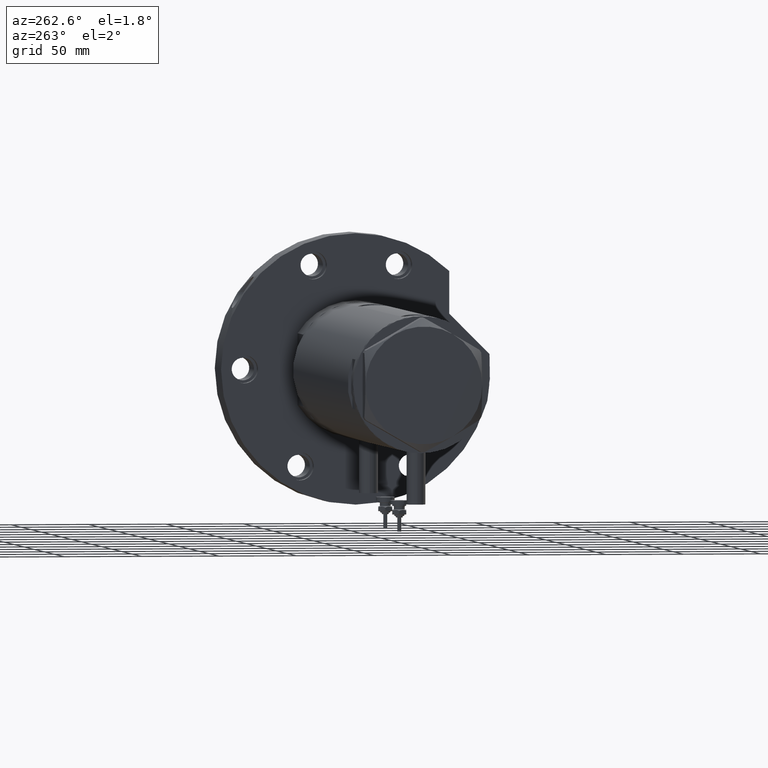
[diagram: clean part render]
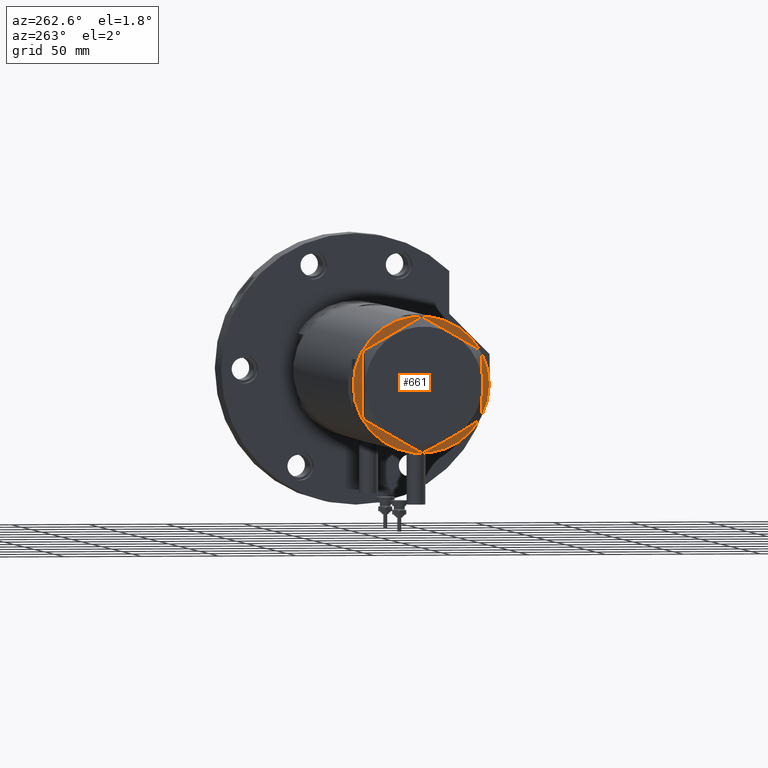
[diagram: same view with one face highlighted and labeled with its STEP entity id]
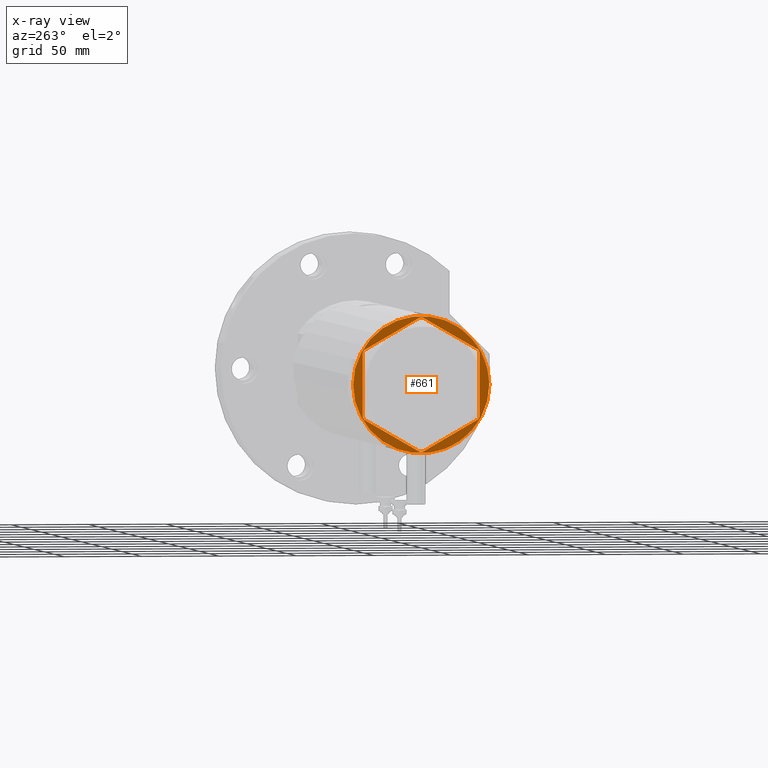
[diagram: x-ray of the same camera — body ghosted, the highlighted face saturated]
A machine part, auxiliary view. The second image highlights one B-rep face of the part: STEP entity #661.
The next image is the same camera in x-ray: the body ghosted, the highlighted face saturated — about 0% of this face is hidden behind the body in this view.
In plain terms, the highlighted planar face has unit normal (1, 0, -0).
Its self-contained STEP definition (entity closure, byte-faithful):
#37 = VECTOR ( 'NONE', #1729, 1000.000000000000000 ) ;
#80 = VERTEX_POINT ( 'NONE', #6365 ) ;
#199 = ORIENTED_EDGE ( 'NONE', *, *, #2464, .T. ) ;
#339 = EDGE_CURVE ( 'NONE', #1367, #3615, #6652, .T. ) ;
#500 = VERTEX_POINT ( 'NONE', #4520 ) ;
#569 = ORIENTED_EDGE ( 'NONE', *, *, #770, .F. ) ;
#596 = EDGE_CURVE ( 'NONE', #6195, #3779, #4616, .T. ) ;
#647 = CARTESIAN_POINT ( 'NONE',  ( 36.78005154776143115, -22.35497266190837706, 0.000000000000000000 ) ) ;
#661 = ADVANCED_FACE ( 'NONE', ( #2149, #3785 ), #2683, .F. ) ;
#734 = DIRECTION ( 'NONE',  ( -0.8660254037844385966, 0.5000000000000000000, 0.000000000000000000 ) ) ;
#749 = CARTESIAN_POINT ( 'NONE',  ( -37.26502577388077242, 21.51497266190828483, 0.000000000000000000 ) ) ;
#770 = EDGE_CURVE ( 'NONE', #2650, #1705, #4042, .T. ) ;
#791 = ORIENTED_EDGE ( 'NONE', *, *, #2218, .T. ) ;
#948 = EDGE_CURVE ( 'NONE', #5919, #3615, #4443, .T. ) ;
#953 = LINE ( 'NONE', #4334, #6620 ) ;
#974 = CARTESIAN_POINT ( 'NONE',  ( -37.74999999999999289, -20.67497266190837379, 0.000000000000000000 ) ) ;
#986 = EDGE_CURVE ( 'NONE', #2300, #6228, #953, .T. ) ;
#1126 = EDGE_CURVE ( 'NONE', #1705, #2650, #4285, .T. ) ;
#1135 = VECTOR ( 'NONE', #734, 1000.000000000000227 ) ;
#1207 = EDGE_LOOP ( 'NONE', ( #4666, #3784, #4222, #7524, #3191, #3913, #2035, #1433, #4525, #199, #1549, #791 ) ) ;
#1308 = CARTESIAN_POINT ( 'NONE',  ( 37.26502577388077242, -21.51497266190830260, 0.000000000000000000 ) ) ;
#1367 = VERTEX_POINT ( 'NONE', #7080 ) ;
#1373 = DIRECTION ( 'NONE',  ( -1.000000000000000000, 0.000000000000000000, 0.000000000000000000 ) ) ;
#1404 = LINE ( 'NONE', #3549, #3853 ) ;
#1433 = ORIENTED_EDGE ( 'NONE', *, *, #7415, .T. ) ;
#1549 = ORIENTED_EDGE ( 'NONE', *, *, #3631, .F. ) ;
#1676 = ORIENTED_EDGE ( 'NONE', *, *, #1126, .F. ) ;
#1705 = VERTEX_POINT ( 'NONE', #2096 ) ;
#1723 = AXIS2_PLACEMENT_3D ( 'NONE', #5909, #2876, #4707 ) ;
#1729 = DIRECTION ( 'NONE',  ( 3.183713056926429451E-16, -1.000000000000000000, 0.000000000000000000 ) ) ;
#1835 = LINE ( 'NONE', #2476, #1135 ) ;
#1884 = LINE ( 'NONE', #1308, #3083 ) ;
#1917 = DIRECTION ( 'NONE',  ( -0.4999999999999981681, -0.8660254037844395958, -0.000000000000000000 ) ) ;
#2035 = ORIENTED_EDGE ( 'NONE', *, *, #339, .F. ) ;
#2041 = VECTOR ( 'NONE', #2597, 999.9999999999998863 ) ;
#2096 = CARTESIAN_POINT ( 'NONE',  ( 44.00000000000000000, 0.000000000000000000, 0.000000000000000000 ) ) ;
#2149 = FACE_BOUND ( 'NONE', #1207, .T. ) ;
#2162 = DIRECTION ( 'NONE',  ( 0.8660254037844388186, 0.4999999999999997224, 0.000000000000000000 ) ) ;
#2218 = EDGE_CURVE ( 'NONE', #500, #5517, #6840, .T. ) ;
#2233 = CARTESIAN_POINT ( 'NONE',  ( -4.107234936485837051E-15, -43.58994532381674247, 0.000000000000000000 ) ) ;
#2300 = VERTEX_POINT ( 'NONE', #5843 ) ;
#2322 = CARTESIAN_POINT ( 'NONE',  ( 0.9699484522385760643, -43.02994532381674020, 0.000000000000000000 ) ) ;
#2332 = VECTOR ( 'NONE', #3337, 1000.000000000000000 ) ;
#2417 = LINE ( 'NONE', #749, #4638 ) ;
#2464 = EDGE_CURVE ( 'NONE', #6195, #80, #2417, .T. ) ;
#2476 = CARTESIAN_POINT ( 'NONE',  ( 37.75000000000000000, 21.79497266190837124, 0.000000000000000000 ) ) ;
#2479 = CARTESIAN_POINT ( 'NONE',  ( 0.000000000000000000, 0.000000000000000000, 0.000000000000000000 ) ) ;
#2597 = DIRECTION ( 'NONE',  ( -0.5000000000000002220, 0.8660254037844385966, -0.000000000000000000 ) ) ;
#2625 = DIRECTION ( 'NONE',  ( -1.000000000000000000, -0.000000000000000000, -0.000000000000000000 ) ) ;
#2650 = VERTEX_POINT ( 'NONE', #6791 ) ;
#2666 = CARTESIAN_POINT ( 'NONE',  ( 0.000000000000000000, -43.02994532381674020, 0.000000000000000000 ) ) ;
#2683 = PLANE ( 'NONE',  #6741 ) ;
#2732 = LINE ( 'NONE', #2233, #5572 ) ;
#2777 = CARTESIAN_POINT ( 'NONE',  ( -37.75000000000000711, 20.67497266190837024, 0.000000000000000000 ) ) ;
#2876 = DIRECTION ( 'NONE',  ( 0.000000000000000000, 0.000000000000000000, -1.000000000000000000 ) ) ;
#2947 = VERTEX_POINT ( 'NONE', #3632 ) ;
#3057 = DIRECTION ( 'NONE',  ( 0.4999999999999978351, 0.8660254037844398178, -0.000000000000000000 ) ) ;
#3083 = VECTOR ( 'NONE', #1917, 1000.000000000000227 ) ;
#3114 = DIRECTION ( 'NONE',  ( -4.775569585389645902E-16, 1.000000000000000000, 0.000000000000000000 ) ) ;
#3191 = ORIENTED_EDGE ( 'NONE', *, *, #6610, .F. ) ;
#3268 = DIRECTION ( 'NONE',  ( 0.4999999999999993894, -0.8660254037844390407, -0.000000000000000000 ) ) ;
#3270 = EDGE_CURVE ( 'NONE', #2300, #5517, #1835, .T. ) ;
#3319 = EDGE_LOOP ( 'NONE', ( #1676, #569 ) ) ;
#3337 = DIRECTION ( 'NONE',  ( 1.000000000000000000, -0.000000000000000000, -0.000000000000000000 ) ) ;
#3397 = DIRECTION ( 'NONE',  ( 0.000000000000000000, 0.000000000000000000, -1.000000000000000000 ) ) ;
#3549 = CARTESIAN_POINT ( 'NONE',  ( 37.75000000000002132, -21.79497266190837124, 0.000000000000000000 ) ) ;
#3576 = VECTOR ( 'NONE', #7265, 1000.000000000000000 ) ;
#3615 = VERTEX_POINT ( 'NONE', #4320 ) ;
#3631 = EDGE_CURVE ( 'NONE', #500, #80, #7150, .T. ) ;
#3632 = CARTESIAN_POINT ( 'NONE',  ( 37.75000000000002132, -20.67497266190835958, 0.000000000000000000 ) ) ;
#3675 = CARTESIAN_POINT ( 'NONE',  ( 0.000000000000000000, 43.58994532381674247, 0.000000000000000000 ) ) ;
#3734 = CARTESIAN_POINT ( 'NONE',  ( -37.74999999999999289, -21.79497266190838189, 0.000000000000000000 ) ) ;
#3779 = VERTEX_POINT ( 'NONE', #974 ) ;
#3784 = ORIENTED_EDGE ( 'NONE', *, *, #986, .T. ) ;
#3785 = FACE_OUTER_BOUND ( 'NONE', #3319, .T. ) ;
#3853 = VECTOR ( 'NONE', #3114, 1000.000000000000000 ) ;
#3913 = ORIENTED_EDGE ( 'NONE', *, *, #948, .T. ) ;
#4042 = CIRCLE ( 'NONE', #1723, 44.00000000000000000 ) ;
#4150 = EDGE_CURVE ( 'NONE', #2947, #4898, #1884, .T. ) ;
#4222 = ORIENTED_EDGE ( 'NONE', *, *, #6060, .F. ) ;
#4285 = CIRCLE ( 'NONE', #6265, 44.00000000000000000 ) ;
#4320 = CARTESIAN_POINT ( 'NONE',  ( -0.9699484522385920515, -43.02994532381674020, 0.000000000000000000 ) ) ;
#4334 = CARTESIAN_POINT ( 'NONE',  ( 37.26502577388072979, 21.51497266190834523, 0.000000000000000000 ) ) ;
#4443 = LINE ( 'NONE', #2666, #4640 ) ;
#4490 = LINE ( 'NONE', #7327, #2041 ) ;
#4520 = CARTESIAN_POINT ( 'NONE',  ( -0.9699484522385801721, 43.02994532381674020, 0.000000000000000000 ) ) ;
#4525 = ORIENTED_EDGE ( 'NONE', *, *, #596, .F. ) ;
#4616 = LINE ( 'NONE', #6976, #37 ) ;
#4638 = VECTOR ( 'NONE', #3057, 1000.000000000000114 ) ;
#4640 = VECTOR ( 'NONE', #2625, 1000.000000000000000 ) ;
#4666 = ORIENTED_EDGE ( 'NONE', *, *, #3270, .F. ) ;
#4707 = DIRECTION ( 'NONE',  ( -1.000000000000000000, 0.000000000000000000, 0.000000000000000000 ) ) ;
#4794 = DIRECTION ( 'NONE',  ( 0.000000000000000000, 0.000000000000000000, -1.000000000000000000 ) ) ;
#4898 = VERTEX_POINT ( 'NONE', #647 ) ;
#5517 = VERTEX_POINT ( 'NONE', #6448 ) ;
#5572 = VECTOR ( 'NONE', #2162, 1000.000000000000114 ) ;
#5739 = DIRECTION ( 'NONE',  ( -1.000000000000000000, 0.000000000000000000, -0.000000000000000000 ) ) ;
#5843 = CARTESIAN_POINT ( 'NONE',  ( 36.78005154776142405, 22.35497266190837706, 0.000000000000000000 ) ) ;
#5909 = CARTESIAN_POINT ( 'NONE',  ( 0.000000000000000000, 0.000000000000000000, 0.000000000000000000 ) ) ;
#5919 = VERTEX_POINT ( 'NONE', #2322 ) ;
#6060 = EDGE_CURVE ( 'NONE', #2947, #6228, #1404, .T. ) ;
#6078 = DIRECTION ( 'NONE',  ( 0.8660254037844385966, -0.4999999999999998890, 0.000000000000000000 ) ) ;
#6122 = VECTOR ( 'NONE', #6078, 1000.000000000000227 ) ;
#6188 = CARTESIAN_POINT ( 'NONE',  ( 0.000000000000000000, 43.02994532381674020, 0.000000000000000000 ) ) ;
#6195 = VERTEX_POINT ( 'NONE', #2777 ) ;
#6209 = CARTESIAN_POINT ( 'NONE',  ( 0.000000000000000000, 0.000000000000000000, 0.000000000000000000 ) ) ;
#6228 = VERTEX_POINT ( 'NONE', #6843 ) ;
#6265 = AXIS2_PLACEMENT_3D ( 'NONE', #2479, #4794, #1373 ) ;
#6365 = CARTESIAN_POINT ( 'NONE',  ( -36.78005154776143826, 22.35497266190836996, 0.000000000000000000 ) ) ;
#6448 = CARTESIAN_POINT ( 'NONE',  ( 0.9699484522385850571, 43.02994532381674020, 0.000000000000000000 ) ) ;
#6610 = EDGE_CURVE ( 'NONE', #5919, #4898, #2732, .T. ) ;
#6620 = VECTOR ( 'NONE', #3268, 999.9999999999998863 ) ;
#6652 = LINE ( 'NONE', #3734, #6122 ) ;
#6741 = AXIS2_PLACEMENT_3D ( 'NONE', #6209, #3397, #5739 ) ;
#6791 = CARTESIAN_POINT ( 'NONE',  ( -44.00000000000000000, 5.388445916248353619E-15, 0.000000000000000000 ) ) ;
#6840 = LINE ( 'NONE', #6188, #2332 ) ;
#6843 = CARTESIAN_POINT ( 'NONE',  ( 37.75000000000000000, 20.67497266190835958, 0.000000000000000000 ) ) ;
#6976 = CARTESIAN_POINT ( 'NONE',  ( -37.75000000000000711, 21.79497266190837124, 0.000000000000000000 ) ) ;
#7080 = CARTESIAN_POINT ( 'NONE',  ( -36.78005154776141694, -22.35497266190838772, 0.000000000000000000 ) ) ;
#7150 = LINE ( 'NONE', #3675, #3576 ) ;
#7265 = DIRECTION ( 'NONE',  ( -0.8660254037844387076, -0.4999999999999998890, 0.000000000000000000 ) ) ;
#7327 = CARTESIAN_POINT ( 'NONE',  ( -37.26502577388070847, -21.51497266190838076, 0.000000000000000000 ) ) ;
#7415 = EDGE_CURVE ( 'NONE', #1367, #3779, #4490, .T. ) ;
#7524 = ORIENTED_EDGE ( 'NONE', *, *, #4150, .T. ) ;